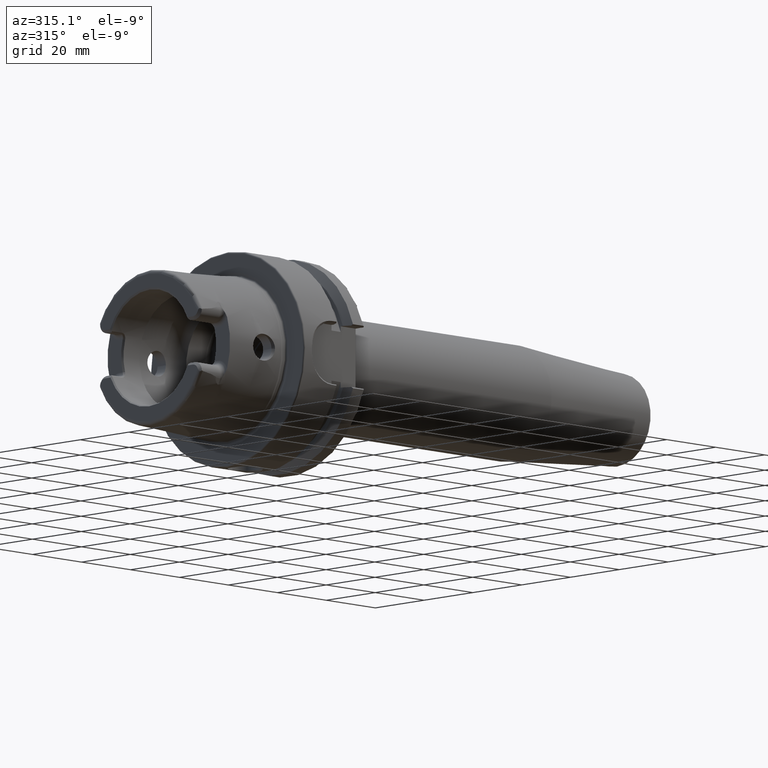
[diagram: clean part render]
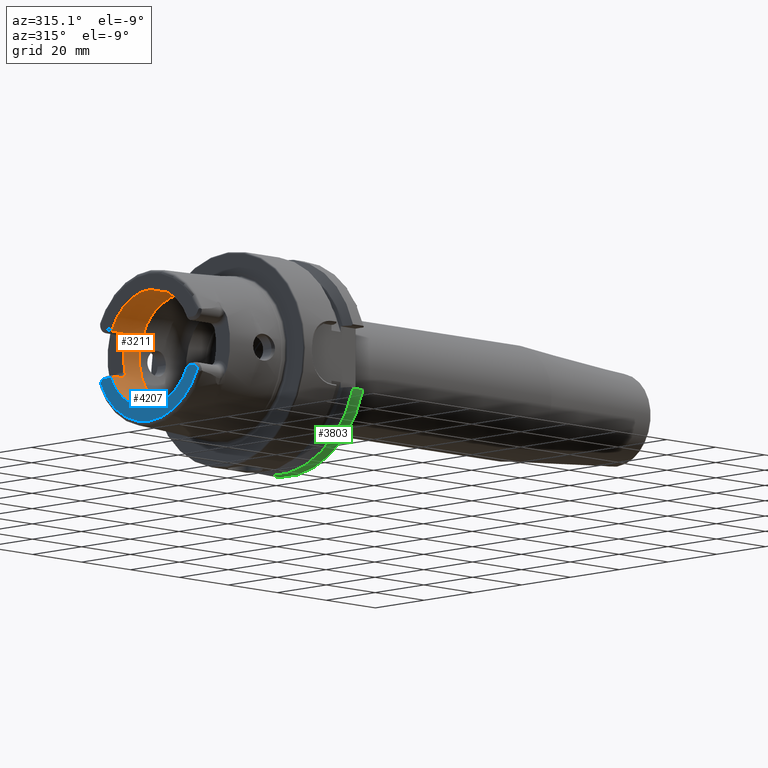
[diagram: same view with three faces highlighted in distinct colors, each labeled with its STEP entity id]
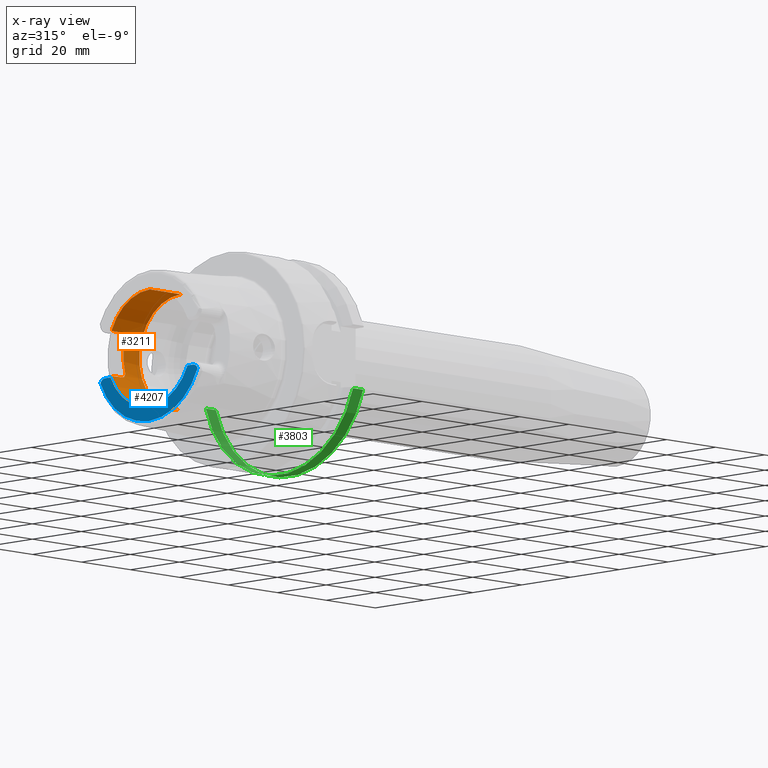
[diagram: x-ray of the same camera — body ghosted, the three highlighted faces saturated]
A machine part, auxiliary view with three faces highlighted in distinct colors.
The next image is the same camera in x-ray (body ghosted, the three faces saturated) — at least one of them is partly hidden behind the body in this view.
Their STEP definitions:

[orange] entity #3211 — the highlighted cylindrical surface (partial cylindrical patch) has radius 17 mm, axis along (1, 0, 0).
#201=CARTESIAN_POINT('',(-3.15E1,0.E0,0.E0));
#202=DIRECTION('',(1.E0,0.E0,0.E0));
#203=DIRECTION('',(0.E0,0.E0,-1.E0));
#204=AXIS2_PLACEMENT_3D('',#201,#202,#203);
#206=DIRECTION('',(-9.999997642097E-1,3.976700710549E-4,5.598563548491E-4));
#207=VECTOR('',#206,4.002685603136E0);
#208=CARTESIAN_POINT('',(-2.749999978847E1,1.567637420504E1,-6.576571430075E0));
#209=LINE('',#208,#207);
#210=CARTESIAN_POINT('',(-2.549999999940E1,1.635630433657E1,-4.633714324929E0));
#211=CARTESIAN_POINT('',(-2.549838850041E1,1.630679360409E1,-4.808479655499E0));
#212=CARTESIAN_POINT('',(-2.554707046576E1,1.620547029602E1,-5.145384202385E0));
#213=CARTESIAN_POINT('',(-2.575647311732E1,1.604187344112E1,-5.633522079891E0));
#214=CARTESIAN_POINT('',(-2.608994108892E1,1.589112188868E1,-6.043305482935E0));
#215=CARTESIAN_POINT('',(-2.651694574854E1,1.576949437732E1,-6.351881679064E0));
#216=CARTESIAN_POINT('',(-2.700696758268E1,1.569284892951E1,-6.537528371491E0));
#217=CARTESIAN_POINT('',(-2.733335586728E1,1.567596114112E1,-6.577556038045E0));
#218=CARTESIAN_POINT('',(-2.749999978847E1,1.567637420504E1,-6.576571430075E0));
#220=CARTESIAN_POINT('',(-2.55E1,0.E0,0.E0));
#221=DIRECTION('',(-1.E0,0.E0,0.E0));
#222=DIRECTION('',(0.E0,9.621355498715E-1,2.725714285714E-1));
#223=AXIS2_PLACEMENT_3D('',#220,#221,#222);
#225=CARTESIAN_POINT('',(-2.750000002224E1,1.567637420600E1,6.576571428506E0));
#226=CARTESIAN_POINT('',(-2.732896835151E1,1.567624121675E1,6.576888430951E0));
#227=CARTESIAN_POINT('',(-2.699663882967E1,1.569374904592E1,6.535388491254E0));
#228=CARTESIAN_POINT('',(-2.651171052890E1,1.577088547604E1,6.348415758134E0));
#229=CARTESIAN_POINT('',(-2.608726728569E1,1.589204732707E1,6.040889089363E0));
#230=CARTESIAN_POINT('',(-2.575332189348E1,1.604362909865E1,5.628584050237E0));
#231=CARTESIAN_POINT('',(-2.554596862809E1,1.620700186967E1,5.140480197640E0));
#232=CARTESIAN_POINT('',(-2.549838997837E1,1.630737693058E1,4.806420601545E0));
#233=CARTESIAN_POINT('',(-2.549999999982E1,1.635630435315E1,4.633714265951E0));
#235=DIRECTION('',(1.E0,1.348570648177E-11,-1.638572969568E-11));
#236=VECTOR('',#235,4.006571406330E0);
#237=CARTESIAN_POINT('',(-3.150657142857E1,1.567637420595E1,6.576571428571E0));
#238=LINE('',#237,#236);
#239=CARTESIAN_POINT('',(-3.150657142857E1,1.567637420595E1,6.576571428571E0));
#240=CARTESIAN_POINT('',(-3.157492591239E1,1.564769805039E1,6.644925912391E0));
#241=CARTESIAN_POINT('',(-3.164317732329E1,1.561853940455E1,6.713177323292E0));
#242=CARTESIAN_POINT('',(-3.171132486541E1,1.558889454291E1,6.781324865405E0));
#244=CARTESIAN_POINT('',(-3.171132486541E1,0.E0,0.E0));
#245=DIRECTION('',(1.E0,0.E0,0.E0));
#246=DIRECTION('',(0.E0,9.169937966415E-1,3.989014626709E-1));
#247=AXIS2_PLACEMENT_3D('',#244,#245,#246);
#249=CARTESIAN_POINT('',(-1.899602540378E1,0.E0,0.E0));
#250=DIRECTION('',(1.E0,0.E0,0.E0));
#251=DIRECTION('',(0.E0,0.E0,-1.E0));
#252=AXIS2_PLACEMENT_3D('',#249,#250,#251);
#277=DIRECTION('',(-1.E0,-6.903792289323E-9,3.402218956798E-11));
#278=VECTOR('',#277,1.250397459548E1);
#279=CARTESIAN_POINT('',(-1.899602540378E1,0.E0,-1.7E1));
#280=LINE('',#279,#278);
#286=DIRECTION('',(-1.E0,2.385283543805E-9,-3.366937683620E-11));
#287=VECTOR('',#286,1.271529946137E1);
#288=CARTESIAN_POINT('',(-1.899602540378E1,0.E0,1.7E1));
#289=LINE('',#288,#287);
#2537=CARTESIAN_POINT('',(-1.899602540378E1,0.E0,-1.7E1));
#2538=CARTESIAN_POINT('',(-1.899602540378E1,0.E0,1.7E1));
#2539=VERTEX_POINT('',#2537);
#2540=VERTEX_POINT('',#2538);
#2742=VERTEX_POINT('',#210);
#2743=VERTEX_POINT('',#218);
#2746=CARTESIAN_POINT('',(-2.55E1,1.635630434782E1,4.633714285714E0));
#2747=VERTEX_POINT('',#2746);
#2750=VERTEX_POINT('',#225);
#2752=CARTESIAN_POINT('',(-3.149999999926E1,-8.632484131626E-8,
-1.699999999957E1));
#2753=VERTEX_POINT('',#2752);
#2754=CARTESIAN_POINT('',(-3.171132486516E1,3.032959195740E-8,
1.699999999957E1));
#2755=VERTEX_POINT('',#2754);
#2808=VERTEX_POINT('',#239);
#2809=VERTEX_POINT('',#242);
#2822=CARTESIAN_POINT('',(-3.150268444781E1,1.567796595331E1,
-6.574330501104E0));
#2823=VERTEX_POINT('',#2822);
#3183=CARTESIAN_POINT('',(0.E0,0.E0,0.E0));
#3184=DIRECTION('',(1.E0,0.E0,0.E0));
#3185=DIRECTION('',(0.E0,0.E0,1.E0));
#3186=AXIS2_PLACEMENT_3D('',#3183,#3184,#3185);
#3187=CYLINDRICAL_SURFACE('',#3186,1.7E1);
#3189=ORIENTED_EDGE('',*,*,#3188,.T.);
#3191=ORIENTED_EDGE('',*,*,#3190,.F.);
#3193=ORIENTED_EDGE('',*,*,#3192,.F.);
#3194=ORIENTED_EDGE('',*,*,#3157,.F.);
#3196=ORIENTED_EDGE('',*,*,#3195,.F.);
#3198=ORIENTED_EDGE('',*,*,#3197,.F.);
#3200=ORIENTED_EDGE('',*,*,#3199,.T.);
#3202=ORIENTED_EDGE('',*,*,#3201,.T.);
#3204=ORIENTED_EDGE('',*,*,#3203,.F.);
#3206=ORIENTED_EDGE('',*,*,#3205,.F.);
#3208=ORIENTED_EDGE('',*,*,#3207,.T.);
#3209=EDGE_LOOP('',(#3189,#3191,#3193,#3194,#3196,#3198,#3200,#3202,#3204,#3206,
#3208));
#3210=FACE_OUTER_BOUND('',#3209,.F.);
#3211=ADVANCED_FACE('',(#3210),#3187,.F.);
#205=CIRCLE('',#204,1.7E1);
#219=B_SPLINE_CURVE_WITH_KNOTS('',3,(#210,#211,#212,#213,#214,#215,#216,#217,
#218),.UNSPECIFIED.,.F.,.F.,(4,1,1,1,1,1,4),(0.E0,1.666666666667E-1,
3.333333333333E-1,5.E-1,6.666666666667E-1,8.333333333333E-1,1.E0),
.UNSPECIFIED.);
#224=CIRCLE('',#223,1.7E1);
#234=B_SPLINE_CURVE_WITH_KNOTS('',3,(#225,#226,#227,#228,#229,#230,#231,#232,
#233),.UNSPECIFIED.,.F.,.F.,(4,1,1,1,1,1,4),(0.E0,1.666666666667E-1,
3.333333333333E-1,5.E-1,6.666666666667E-1,8.333333333333E-1,1.E0),
.UNSPECIFIED.);
#243=B_SPLINE_CURVE_WITH_KNOTS('',3,(#239,#240,#241,#242),.UNSPECIFIED.,.F.,.F.,
(4,4),(0.E0,1.E0),.UNSPECIFIED.);
#248=CIRCLE('',#247,1.7E1);
#253=CIRCLE('',#252,1.7E1);
#3157=EDGE_CURVE('',#2747,#2742,#224,.T.);
#3188=EDGE_CURVE('',#2753,#2823,#205,.T.);
#3190=EDGE_CURVE('',#2743,#2823,#209,.T.);
#3192=EDGE_CURVE('',#2742,#2743,#219,.T.);
#3195=EDGE_CURVE('',#2750,#2747,#234,.T.);
#3197=EDGE_CURVE('',#2808,#2750,#238,.T.);
#3199=EDGE_CURVE('',#2808,#2809,#243,.T.);
#3201=EDGE_CURVE('',#2809,#2755,#248,.T.);
#3203=EDGE_CURVE('',#2540,#2755,#289,.T.);
#3205=EDGE_CURVE('',#2539,#2540,#253,.T.);
#3207=EDGE_CURVE('',#2539,#2753,#280,.T.);

[blue] entity #4207 — the highlighted planar face has unit normal (1, 0, 0).
#88=CARTESIAN_POINT('',(-3.2E1,0.E0,0.E0));
#89=DIRECTION('',(-1.E0,0.E0,0.E0));
#90=DIRECTION('',(0.E0,9.224287428258E-1,-3.861673399044E-1));
#91=AXIS2_PLACEMENT_3D('',#88,#89,#90);
#1240=DIRECTION('',(0.E0,1.E0,0.E0));
#1241=VECTOR('',#1240,2.213010809741E0);
#1242=CARTESIAN_POINT('',(-3.2E1,1.577698919026E1,-7.07E0));
#1243=LINE('',#1242,#1241);
#1244=DIRECTION('',(0.E0,-1.E0,0.E0));
#1245=VECTOR('',#1244,2.213010809741E0);
#1246=CARTESIAN_POINT('',(-3.2E1,-1.577698919026E1,-7.07E0));
#1247=LINE('',#1246,#1245);
#1248=CARTESIAN_POINT('',(-3.2E1,-1.799E1,-9.15E0));
#1249=DIRECTION('',(1.E0,0.E0,0.E0));
#1250=DIRECTION('',(0.E0,0.E0,1.E0));
#1251=AXIS2_PLACEMENT_3D('',#1248,#1249,#1250);
#1253=CARTESIAN_POINT('',(-3.2E1,1.799E1,-9.15E0));
#1254=DIRECTION('',(-1.E0,0.E0,0.E0));
#1255=DIRECTION('',(0.E0,0.E0,1.E0));
#1256=AXIS2_PLACEMENT_3D('',#1253,#1254,#1255);
#1624=CARTESIAN_POINT('',(-3.2E1,0.E0,-3.446132268436E-13));
#1625=DIRECTION('',(1.E0,0.E0,0.E0));
#1626=DIRECTION('',(0.E0,-9.125620712653E-1,-4.089382179351E-1));
#1627=AXIS2_PLACEMENT_3D('',#1624,#1625,#1626);
#2783=CARTESIAN_POINT('',(-3.2E1,-1.799E1,-7.07E0));
#2785=VERTEX_POINT('',#2783);
#2786=CARTESIAN_POINT('',(-3.2E1,-1.577698919026E1,-7.07E0));
#2787=VERTEX_POINT('',#2786);
#2788=CARTESIAN_POINT('',(-3.2E1,-1.990238974402E1,-8.331974653830E0));
#2789=VERTEX_POINT('',#2788);
#2801=CARTESIAN_POINT('',(-3.2E1,1.799E1,-7.07E0));
#2803=VERTEX_POINT('',#2801);
#2814=CARTESIAN_POINT('',(-3.2E1,1.577698919026E1,-7.07E0));
#2815=VERTEX_POINT('',#2814);
#2816=CARTESIAN_POINT('',(-3.2E1,1.990238974402E1,-8.331974653830E0));
#2817=VERTEX_POINT('',#2816);
#4193=CARTESIAN_POINT('',(-3.2E1,0.E0,0.E0));
#4194=DIRECTION('',(1.E0,0.E0,0.E0));
#4195=DIRECTION('',(0.E0,0.E0,1.E0));
#4196=AXIS2_PLACEMENT_3D('',#4193,#4194,#4195);
#4197=PLANE('',#4196);
#4198=ORIENTED_EDGE('',*,*,#3086,.F.);
#4200=ORIENTED_EDGE('',*,*,#4199,.F.);
#4201=ORIENTED_EDGE('',*,*,#4162,.T.);
#4202=ORIENTED_EDGE('',*,*,#4151,.T.);
#4203=ORIENTED_EDGE('',*,*,#3045,.F.);
#4204=ORIENTED_EDGE('',*,*,#3066,.F.);
#4205=EDGE_LOOP('',(#4198,#4200,#4201,#4202,#4203,#4204));
#4206=FACE_OUTER_BOUND('',#4205,.F.);
#4207=ADVANCED_FACE('',(#4206),#4197,.F.);
#92=CIRCLE('',#91,2.157607283902E1);
#1252=CIRCLE('',#1251,2.08E0);
#1257=CIRCLE('',#1256,2.08E0);
#1628=CIRCLE('',#1627,1.728867513459E1);
#3045=EDGE_CURVE('',#2817,#2789,#92,.T.);
#3066=EDGE_CURVE('',#2803,#2817,#1257,.T.);
#3086=EDGE_CURVE('',#2815,#2803,#1243,.T.);
#4151=EDGE_CURVE('',#2785,#2789,#1252,.T.);
#4162=EDGE_CURVE('',#2787,#2785,#1247,.T.);
#4199=EDGE_CURVE('',#2787,#2815,#1628,.T.);

[green] entity #3803 — the highlighted cylindrical surface (partial cylindrical patch) has radius 31.5 mm, axis along (1, 0, 0).
#680=CARTESIAN_POINT('',(2.55E1,0.E0,0.E0));
#681=DIRECTION('',(-1.E0,0.E0,0.E0));
#682=DIRECTION('',(0.E0,9.619863658485E-1,-2.730974769596E-1));
#683=AXIS2_PLACEMENT_3D('',#680,#681,#682);
#690=DIRECTION('',(1.E0,0.E0,1.034143222886E-14));
#691=VECTOR('',#690,4.122500945915E0);
#692=CARTESIAN_POINT('',(2.137749905409E1,3.030257052423E1,-8.602570524226E0));
#693=LINE('',#692,#691);
#694=DIRECTION('',(1.E0,0.E0,0.E0));
#695=VECTOR('',#694,4.122500945915E0);
#696=CARTESIAN_POINT('',(2.137749905409E1,-3.007314630073E1,-9.373146300730E0));
#697=LINE('',#696,#695);
#817=CARTESIAN_POINT('',(2.55E1,3.030257052423E1,-8.602570524226E0));
#2102=CARTESIAN_POINT('',(2.55E1,-3.007314630073E1,-9.373146300730E0));
#2190=CARTESIAN_POINT('',(2.137749905409E1,3.030257052423E1,-8.602570524226E0));
#2220=CARTESIAN_POINT('',(2.137749905409E1,-3.007314630073E1,
-9.373146300730E0));
#2222=CARTESIAN_POINT('',(2.137749905409E1,0.E0,0.E0));
#2223=DIRECTION('',(1.E0,0.E0,0.E0));
#2224=DIRECTION('',(0.E0,-9.547030571660E-1,-2.975602000232E-1));
#2225=AXIS2_PLACEMENT_3D('',#2222,#2223,#2224);
#2870=VERTEX_POINT('',#2220);
#2892=VERTEX_POINT('',#2190);
#2910=VERTEX_POINT('',#2102);
#2914=VERTEX_POINT('',#817);
#3789=CARTESIAN_POINT('',(0.E0,0.E0,0.E0));
#3790=DIRECTION('',(1.E0,0.E0,0.E0));
#3791=DIRECTION('',(0.E0,0.E0,1.E0));
#3792=AXIS2_PLACEMENT_3D('',#3789,#3790,#3791);
#3793=CYLINDRICAL_SURFACE('',#3792,3.15E1);
#3794=ORIENTED_EDGE('',*,*,#3777,.F.);
#3796=ORIENTED_EDGE('',*,*,#3795,.F.);
#3798=ORIENTED_EDGE('',*,*,#3797,.F.);
#3800=ORIENTED_EDGE('',*,*,#3799,.T.);
#3801=EDGE_LOOP('',(#3794,#3796,#3798,#3800));
#3802=FACE_OUTER_BOUND('',#3801,.F.);
#3803=ADVANCED_FACE('',(#3802),#3793,.T.);
#684=CIRCLE('',#683,3.15E1);
#2226=CIRCLE('',#2225,3.15E1);
#3777=EDGE_CURVE('',#2914,#2910,#684,.T.);
#3795=EDGE_CURVE('',#2892,#2914,#693,.T.);
#3797=EDGE_CURVE('',#2870,#2892,#2226,.T.);
#3799=EDGE_CURVE('',#2870,#2910,#697,.T.);